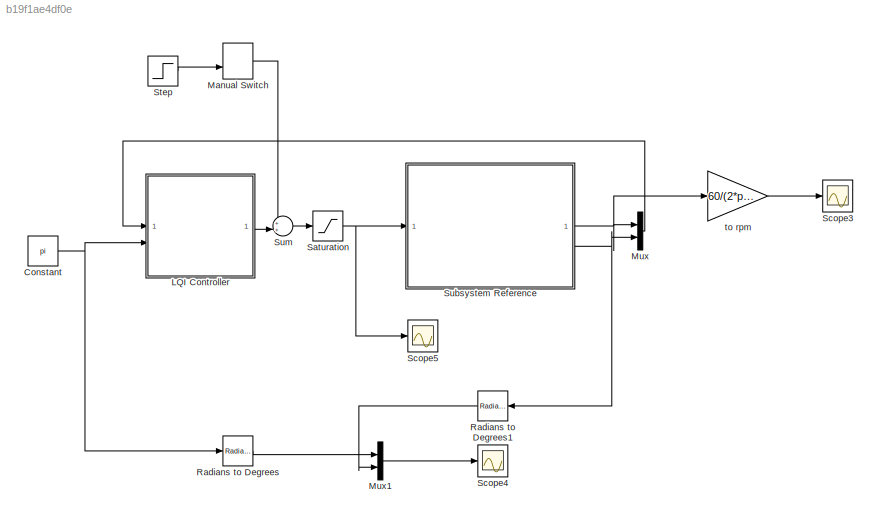
MODEL slx_b19f1ae4df0e
KIND model
CONFIG AbsTol = auto
CONFIG EnableMultiTasking = on
CONFIG FixedStep = auto
CONFIG MaxStep = auto
CONFIG MinStep = auto
CONFIG RelTol = 1e-10
CONFIG SampleTimeConstraint = Unconstrained
CONFIG SolverName = VariableStepAuto
CONFIG StartTime = 0.0
CONFIG StopTime = 2.5
BLOCK [Constant] Constant
  Value = pi
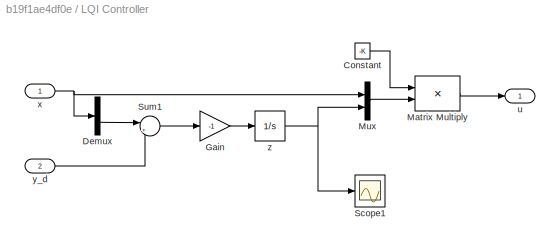
BLOCK [SubSystem] LQI Controller
BLOCK [Constant] LQI Controller/Constant
  Value = -K
  VectorParams1D = off
BLOCK [Demux] LQI Controller/Demux
  Outputs = 2
BLOCK [Gain] LQI Controller/Gain
  Gain = -1
BLOCK [Product] LQI Controller/Matrix Multiply
  Multiplication = Matrix(*)
BLOCK [Mux] LQI Controller/Mux
  DisplayOption = bar
  Inputs = 2
BLOCK [Scope] LQI Controller/Scope1
  Floating = off
  NumInputPorts = 1
  ScopeSpecificationString = Simulink.scopes.TimeScopeBlockCfg('CurrentConfiguration', extmgr.ConfigurationSet(extmgr.Configuration('Core','General UI',true),extmgr.Configuration('Core','Source UI',true),extmgr.Configuration('Sources','WiredSimulink',true,'DataLoggingVariableName','ScopeData2'),extmgr.Configuration('Visuals','Time Domain',true,'SerializedDisplays',{struct('MinYLimReal','-0.02001','MaxYLimReal','0.18012','YLab...<+1432ch>
BLOCK [Sum] LQI Controller/Sum1
  Inputs = |+-
BLOCK [Outport] LQI Controller/u
BLOCK [Inport] LQI Controller/x
BLOCK [Inport] LQI Controller/y_d
  Port = 2
BLOCK [Integrator] LQI Controller/z
BLOCK [ManualSwitch] Manual Switch
BLOCK [Mux] Mux
  DisplayOption = bar
  Inputs = 2
BLOCK [Mux] Mux1
  DisplayOption = bar
  Inputs = 2
BLOCK [Reference] Radians to Degrees  REF=simulink_extras/Transformations/Radians
to Degrees
  SourceBlock = simulink_extras/Transformations/Radians\nto Degrees
  SourceType = RadiansToDegrees
BLOCK [Reference] Radians to Degrees1  REF=simulink_extras/Transformations/Radians
to Degrees
  NameLocation = top
  SourceBlock = simulink_extras/Transformations/Radians\nto Degrees
  SourceType = RadiansToDegrees
BLOCK [Saturate] Saturation
  LowerLimit = -12
  UpperLimit = 12
BLOCK [Scope] Scope3
  Floating = off
  NumInputPorts = 1
  ScopeSpecificationString = Simulink.scopes.TimeScopeBlockCfg('CurrentConfiguration', extmgr.ConfigurationSet(extmgr.Configuration('Core','General UI',true),extmgr.Configuration('Core','Source UI',true),extmgr.Configuration('Sources','WiredSimulink',true,'DataLoggingVariableName','ScopeData2'),extmgr.Configuration('Visuals','Time Domain',true,'TimeAxisLabels','All','SerializedDisplays',{struct('MinYLimReal','-10.15981','MaxY...<+1756ch>
BLOCK [Scope] Scope4
  Floating = off
  NumInputPorts = 1
  ScopeSpecificationString = Simulink.scopes.TimeScopeBlockCfg('CurrentConfiguration', extmgr.ConfigurationSet(extmgr.Configuration('Core','General UI',true),extmgr.Configuration('Core','Source UI',true),extmgr.Configuration('Sources','WiredSimulink',true,'DataLoggingVariableName','ScopeData1'),extmgr.Configuration('Visuals','Time Domain',true,'TimeAxisLabels','All','SerializedDisplays',{struct('MinYLimReal','-22.5','MaxYLimR...<+1747ch>
BLOCK [Scope] Scope5
  Floating = off
  NumInputPorts = 1
  ScopeSpecificationString = Simulink.scopes.TimeScopeBlockCfg('CurrentConfiguration', extmgr.ConfigurationSet(extmgr.Configuration('Core','General UI',true),extmgr.Configuration('Core','Source UI',true),extmgr.Configuration('Sources','WiredSimulink',true,'DataLoggingVariableName','ScopeData3'),extmgr.Configuration('Visuals','Time Domain',true,'TimeAxisLabels','All','SerializedDisplays',{struct('MinYLimReal','-3.49233','MaxYL...<+1755ch>
BLOCK [Step] Step
  After = -12
  SampleTime = 0
  Time = 2
BLOCK [SubSystem] Subsystem Reference
  ReferencedSubsystem = pololu_37D_pos_second_order
BLOCK [Sum] Sum
  Inputs = ++|
BLOCK [Gain] to rpm
  Gain = 60/(2*pi)
NET Constant:1 -> LQI Controller:2, Radians to Degrees:1
LINE LQI Controller/Constant:1 -> LQI Controller/Matrix Multiply:1
LINE LQI Controller/Demux:2 -> LQI Controller/Sum1:1
LINE LQI Controller/Gain:1 -> LQI Controller/z:1
LINE LQI Controller/Matrix Multiply:1 -> LQI Controller/u:1
LINE LQI Controller/Mux:1 -> LQI Controller/Matrix Multiply:2
LINE LQI Controller/Sum1:1 -> LQI Controller/Gain:1
NET LQI Controller/x:1 -> LQI Controller/Demux:1, LQI Controller/Mux:1
LINE LQI Controller/y_d:1 -> LQI Controller/Sum1:2
NET LQI Controller/z:1 -> LQI Controller/Mux:2, LQI Controller/Scope1:1
LINE LQI Controller:1 -> Sum:2
LINE Manual Switch:1 -> Sum:1
LINE Mux1:1 -> Scope4:1
LINE Mux:1 -> LQI Controller:1
LINE Radians to Degrees1:1 -> Mux1:2
LINE Radians to Degrees:1 -> Mux1:1
NET Saturation:1 -> Scope5:1, Subsystem Reference:1
LINE Step:1 -> Manual Switch:2
NET Subsystem Reference:1 -> Mux:1, to rpm:1
NET Subsystem Reference:2 -> Mux:2, Radians to Degrees1:1
LINE Sum:1 -> Saturation:1
LINE to rpm:1 -> Scope3:1
note: NET lines group one-source signal fan-out (src -> all destinations, sorted); 1:1 wires keep LINE
